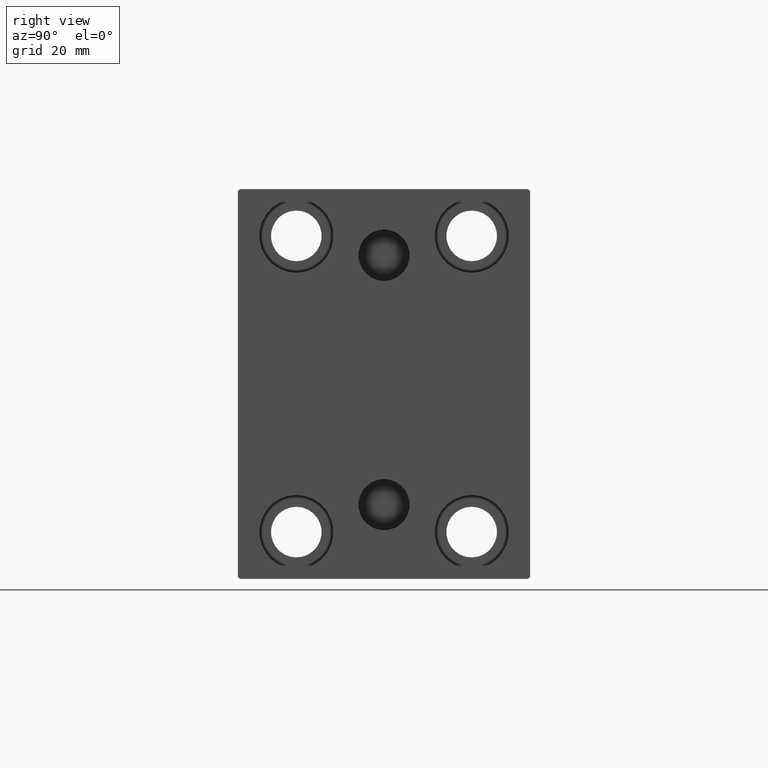
[diagram: clean part render]
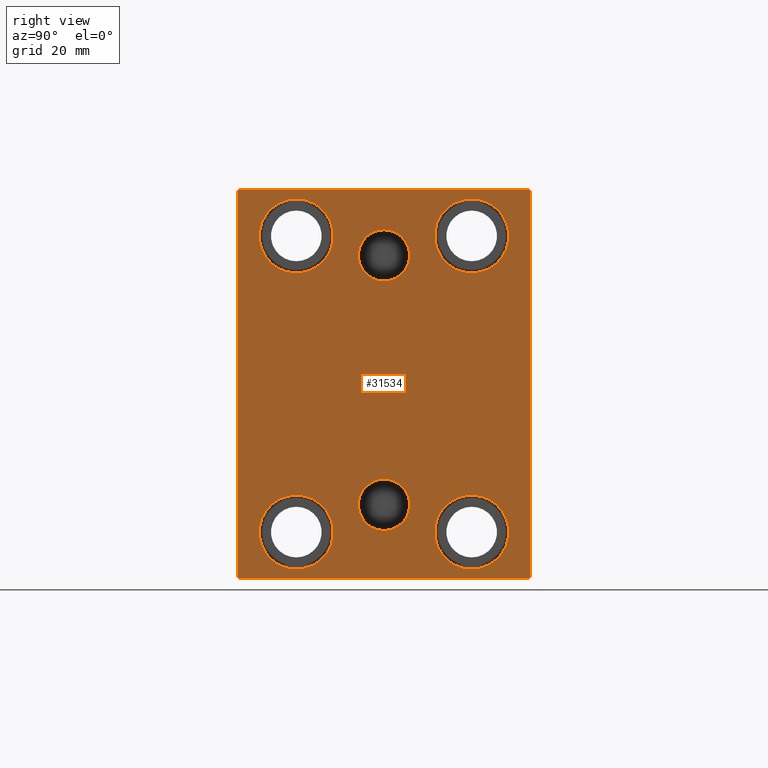
[diagram: same view with one face highlighted and labeled with its STEP entity id]
A machine part, right view. The second image highlights one B-rep face of the part: STEP entity #31534.
In plain terms, the highlighted planar face has unit normal (1, 0, 0).
Its self-contained STEP definition (entity closure, byte-faithful):
#221 = AXIS2_PLACEMENT_3D ( 'NONE', #29704, #9212, #25478 ) ;
#949 = CARTESIAN_POINT ( 'NONE',  ( 98.00000000000000000, -22.50000000000000711, -47.49999999999999289 ) ) ;
#1433 = CARTESIAN_POINT ( 'NONE',  ( 98.00000000000000000, -5.306417150674643778E-15, 33.00000000000000711 ) ) ;
#1539 = AXIS2_PLACEMENT_3D ( 'NONE', #19851, #16714, #5806 ) ;
#1795 = EDGE_CURVE ( 'NONE', #40604, #2858, #9403, .T. ) ;
#2061 = ORIENTED_EDGE ( 'NONE', *, *, #7458, .T. ) ;
#2461 = LINE ( 'NONE', #16273, #10761 ) ;
#2858 = VERTEX_POINT ( 'NONE', #25185 ) ;
#2872 = VERTEX_POINT ( 'NONE', #43705 ) ;
#2883 = EDGE_CURVE ( 'NONE', #4324, #2872, #26850, .T. ) ;
#3271 = CARTESIAN_POINT ( 'NONE',  ( 98.00000000000000000, 22.50000000000000355, 47.49999999999999289 ) ) ;
#3353 = VERTEX_POINT ( 'NONE', #949 ) ;
#3540 = ORIENTED_EDGE ( 'NONE', *, *, #21836, .T. ) ;
#3733 = AXIS2_PLACEMENT_3D ( 'NONE', #37548, #44016, #23698 ) ;
#4324 = VERTEX_POINT ( 'NONE', #19531 ) ;
#4457 = EDGE_LOOP ( 'NONE', ( #24861, #8201, #6650, #7003, #37424, #12332, #38083, #21859 ) ) ;
#4583 = VERTEX_POINT ( 'NONE', #16565 ) ;
#4586 = VECTOR ( 'NONE', #35728, 1000.000000000000000 ) ;
#4667 = LINE ( 'NONE', #18259, #26168 ) ;
#5006 = LINE ( 'NONE', #11698, #43155 ) ;
#5027 = AXIS2_PLACEMENT_3D ( 'NONE', #29333, #36047, #32680 ) ;
#5312 = ORIENTED_EDGE ( 'NONE', *, *, #2883, .T. ) ;
#5364 = DIRECTION ( 'NONE',  ( 1.000000000000000000, 0.000000000000000000, -0.000000000000000000 ) ) ;
#5806 = DIRECTION ( 'NONE',  ( 0.000000000000000000, 0.000000000000000000, 1.000000000000000000 ) ) ;
#5817 = AXIS2_PLACEMENT_3D ( 'NONE', #23406, #22524, #36142 ) ;
#6386 = CIRCLE ( 'NONE', #24893, 9.500000000000001776 ) ;
#6456 = DIRECTION ( 'NONE',  ( 0.000000000000000000, -0.7071067811865474617, -0.7071067811865474617 ) ) ;
#6536 = ORIENTED_EDGE ( 'NONE', *, *, #10000, .T. ) ;
#6650 = ORIENTED_EDGE ( 'NONE', *, *, #40523, .T. ) ;
#6662 = DIRECTION ( 'NONE',  ( 0.000000000000000000, 0.000000000000000000, 1.000000000000000000 ) ) ;
#6747 = VERTEX_POINT ( 'NONE', #12336 ) ;
#6927 = LINE ( 'NONE', #40836, #29473 ) ;
#7003 = ORIENTED_EDGE ( 'NONE', *, *, #1795, .T. ) ;
#7458 = EDGE_CURVE ( 'NONE', #2872, #4324, #6386, .T. ) ;
#7641 = AXIS2_PLACEMENT_3D ( 'NONE', #1433, #42478, #32413 ) ;
#8098 = ORIENTED_EDGE ( 'NONE', *, *, #41357, .F. ) ;
#8201 = ORIENTED_EDGE ( 'NONE', *, *, #11480, .T. ) ;
#8940 = FACE_BOUND ( 'NONE', #31191, .T. ) ;
#9212 = DIRECTION ( 'NONE',  ( -1.000000000000000000, -0.000000000000000000, -0.000000000000000000 ) ) ;
#9384 = CARTESIAN_POINT ( 'NONE',  ( 98.00000000000000000, 3.796405077356792748E-15, -30.99999999999999289 ) ) ;
#9403 = LINE ( 'NONE', #43524, #16853 ) ;
#9793 = CIRCLE ( 'NONE', #7641, 6.579999999999999183 ) ;
#9935 = EDGE_LOOP ( 'NONE', ( #6536, #3540 ) ) ;
#10000 = EDGE_CURVE ( 'NONE', #3353, #43823, #17122, .T. ) ;
#10246 = CARTESIAN_POINT ( 'NONE',  ( 98.00000000000000000, -37.50000000000000711, 49.99999999999999289 ) ) ;
#10324 = DIRECTION ( 'NONE',  ( 0.000000000000000000, 0.000000000000000000, 1.000000000000000000 ) ) ;
#10549 = DIRECTION ( 'NONE',  ( -1.000000000000000000, -0.000000000000000000, -0.000000000000000000 ) ) ;
#10761 = VECTOR ( 'NONE', #6456, 1000.000000000000114 ) ;
#10910 = EDGE_CURVE ( 'NONE', #38505, #6747, #24255, .T. ) ;
#11415 = DIRECTION ( 'NONE',  ( 0.000000000000000000, 0.000000000000000000, 1.000000000000000000 ) ) ;
#11480 = EDGE_CURVE ( 'NONE', #21706, #13345, #2461, .T. ) ;
#11494 = DIRECTION ( 'NONE',  ( 0.000000000000000000, 0.000000000000000000, 1.000000000000000000 ) ) ;
#11698 = CARTESIAN_POINT ( 'NONE',  ( 98.00000000000000000, 37.50000000000000711, -50.00000000000000000 ) ) ;
#12332 = ORIENTED_EDGE ( 'NONE', *, *, #24252, .T. ) ;
#12336 = CARTESIAN_POINT ( 'NONE',  ( 98.00000000000000000, 22.50000000000000355, 28.49999999999998934 ) ) ;
#12507 = CARTESIAN_POINT ( 'NONE',  ( 98.00000000000000000, -22.50000000000000711, -28.49999999999998934 ) ) ;
#12719 = FACE_BOUND ( 'NONE', #37607, .T. ) ;
#12818 = VERTEX_POINT ( 'NONE', #34653 ) ;
#13345 = VERTEX_POINT ( 'NONE', #39282 ) ;
#13494 = VERTEX_POINT ( 'NONE', #14026 ) ;
#13506 = VERTEX_POINT ( 'NONE', #23420 ) ;
#13642 = CIRCLE ( 'NONE', #5817, 6.579999999999999183 ) ;
#13655 = ORIENTED_EDGE ( 'NONE', *, *, #22541, .T. ) ;
#14026 = CARTESIAN_POINT ( 'NONE',  ( 98.00000000000000000, 37.49999999999999289, 49.50000000000000000 ) ) ;
#14470 = DIRECTION ( 'NONE',  ( -0.000000000000000000, 0.7071067811865474617, 0.7071067811865474617 ) ) ;
#14621 = DIRECTION ( 'NONE',  ( -1.000000000000000000, -0.000000000000000000, -0.000000000000000000 ) ) ;
#15132 = EDGE_CURVE ( 'NONE', #27270, #4583, #42899, .T. ) ;
#15257 = DIRECTION ( 'NONE',  ( 0.000000000000000000, -1.387778780781445676E-16, 1.000000000000000000 ) ) ;
#15383 = DIRECTION ( 'NONE',  ( 1.000000000000000000, 0.000000000000000000, 0.000000000000000000 ) ) ;
#15607 = FACE_BOUND ( 'NONE', #38468, .T. ) ;
#16273 = CARTESIAN_POINT ( 'NONE',  ( 98.00000000000000000, -43.49999999999998579, 43.49999999999998579 ) ) ;
#16517 = DIRECTION ( 'NONE',  ( -0.000000000000000000, 0.7071067811865474617, -0.7071067811865474617 ) ) ;
#16565 = CARTESIAN_POINT ( 'NONE',  ( 98.00000000000000000, -22.49999999999999645, 47.49999999999999289 ) ) ;
#16684 = CIRCLE ( 'NONE', #41625, 9.500000000000001776 ) ;
#16714 = DIRECTION ( 'NONE',  ( 1.000000000000000000, 0.000000000000000000, -0.000000000000000000 ) ) ;
#16853 = VECTOR ( 'NONE', #16517, 1000.000000000000114 ) ;
#17122 = CIRCLE ( 'NONE', #40649, 9.500000000000001776 ) ;
#17316 = CARTESIAN_POINT ( 'NONE',  ( 98.00000000000000000, -22.50000000000000711, -37.99999999999999289 ) ) ;
#18228 = CARTESIAN_POINT ( 'NONE',  ( 98.00000000000000000, -37.50000000000000711, -49.49999999999999289 ) ) ;
#18259 = CARTESIAN_POINT ( 'NONE',  ( 98.00000000000000000, -37.50000000000000711, -50.00000000000000711 ) ) ;
#19180 = PLANE ( 'NONE',  #21814 ) ;
#19531 = CARTESIAN_POINT ( 'NONE',  ( 98.00000000000000000, 22.49999999999999645, -47.49999999999999289 ) ) ;
#19714 = ORIENTED_EDGE ( 'NONE', *, *, #24813, .T. ) ;
#19851 = CARTESIAN_POINT ( 'NONE',  ( 98.00000000000000000, 3.796405077356792748E-15, -30.99999999999999289 ) ) ;
#20395 = EDGE_CURVE ( 'NONE', #13494, #32348, #37404, .T. ) ;
#20966 = DIRECTION ( 'NONE',  ( 0.000000000000000000, 1.000000000000000000, 9.251858538542970348E-17 ) ) ;
#21466 = CARTESIAN_POINT ( 'NONE',  ( 98.00000000000000000, 3.796405077356792748E-15, -37.57999999999999829 ) ) ;
#21706 = VERTEX_POINT ( 'NONE', #26852 ) ;
#21814 = AXIS2_PLACEMENT_3D ( 'NONE', #22070, #15383, #26317 ) ;
#21836 = EDGE_CURVE ( 'NONE', #43823, #3353, #40140, .T. ) ;
#21859 = ORIENTED_EDGE ( 'NONE', *, *, #20395, .T. ) ;
#22070 = CARTESIAN_POINT ( 'NONE',  ( 98.00000000000000000, 0.000000000000000000, 0.000000000000000000 ) ) ;
#22175 = ORIENTED_EDGE ( 'NONE', *, *, #31535, .F. ) ;
#22459 = VERTEX_POINT ( 'NONE', #23371 ) ;
#22524 = DIRECTION ( 'NONE',  ( 1.000000000000000000, 0.000000000000000000, 0.000000000000000000 ) ) ;
#22541 = EDGE_CURVE ( 'NONE', #6747, #38505, #30173, .T. ) ;
#23371 = CARTESIAN_POINT ( 'NONE',  ( 98.00000000000000000, 37.50000000000000711, -49.50000000000000000 ) ) ;
#23406 = CARTESIAN_POINT ( 'NONE',  ( 98.00000000000000000, -5.306417150674643778E-15, 33.00000000000000711 ) ) ;
#23420 = CARTESIAN_POINT ( 'NONE',  ( 98.00000000000000000, -4.500599556835685525E-15, 39.58000000000000540 ) ) ;
#23698 = DIRECTION ( 'NONE',  ( 0.000000000000000000, 0.000000000000000000, 1.000000000000000000 ) ) ;
#23821 = CARTESIAN_POINT ( 'NONE',  ( 98.00000000000000000, 22.49999999999999645, -37.99999999999999289 ) ) ;
#24252 = EDGE_CURVE ( 'NONE', #12818, #22459, #6927, .T. ) ;
#24255 = CIRCLE ( 'NONE', #5027, 9.500000000000001776 ) ;
#24496 = LINE ( 'NONE', #10246, #42135 ) ;
#24686 = AXIS2_PLACEMENT_3D ( 'NONE', #9384, #5364, #35694 ) ;
#24813 = EDGE_CURVE ( 'NONE', #4583, #27270, #16684, .T. ) ;
#24861 = ORIENTED_EDGE ( 'NONE', *, *, #26067, .T. ) ;
#24893 = AXIS2_PLACEMENT_3D ( 'NONE', #27258, #27470, #10324 ) ;
#25185 = CARTESIAN_POINT ( 'NONE',  ( 98.00000000000000000, -36.99999999999999289, -50.00000000000000711 ) ) ;
#25408 = AXIS2_PLACEMENT_3D ( 'NONE', #23821, #30070, #6662 ) ;
#25429 = FACE_OUTER_BOUND ( 'NONE', #4457, .T. ) ;
#25462 = LINE ( 'NONE', #39083, #4586 ) ;
#25478 = DIRECTION ( 'NONE',  ( 0.000000000000000000, 0.000000000000000000, 1.000000000000000000 ) ) ;
#25878 = FACE_BOUND ( 'NONE', #31073, .T. ) ;
#25970 = VERTEX_POINT ( 'NONE', #35282 ) ;
#26067 = EDGE_CURVE ( 'NONE', #32348, #21706, #25462, .T. ) ;
#26168 = VECTOR ( 'NONE', #20966, 1000.000000000000000 ) ;
#26317 = DIRECTION ( 'NONE',  ( 0.000000000000000000, 0.000000000000000000, -1.000000000000000000 ) ) ;
#26545 = CARTESIAN_POINT ( 'NONE',  ( 98.00000000000000000, 36.99999999999999289, 50.00000000000000711 ) ) ;
#26850 = CIRCLE ( 'NONE', #25408, 9.500000000000001776 ) ;
#26852 = CARTESIAN_POINT ( 'NONE',  ( 98.00000000000000000, -36.99999999999999289, 49.99999999999999289 ) ) ;
#27015 = EDGE_LOOP ( 'NONE', ( #32516, #19714 ) ) ;
#27258 = CARTESIAN_POINT ( 'NONE',  ( 98.00000000000000000, 22.49999999999999645, -37.99999999999999289 ) ) ;
#27270 = VERTEX_POINT ( 'NONE', #32036 ) ;
#27333 = CARTESIAN_POINT ( 'NONE',  ( 98.00000000000000000, 43.50000000000026290, 43.49999999999965894 ) ) ;
#27470 = DIRECTION ( 'NONE',  ( -1.000000000000000000, -0.000000000000000000, -0.000000000000000000 ) ) ;
#28013 = CARTESIAN_POINT ( 'NONE',  ( 98.00000000000000000, 22.50000000000000355, 37.99999999999999289 ) ) ;
#29333 = CARTESIAN_POINT ( 'NONE',  ( 98.00000000000000000, 22.50000000000000355, 37.99999999999999289 ) ) ;
#29404 = EDGE_CURVE ( 'NONE', #22459, #13494, #5006, .T. ) ;
#29473 = VECTOR ( 'NONE', #14470, 1000.000000000000114 ) ;
#29507 = VECTOR ( 'NONE', #36966, 999.9999999999998863 ) ;
#29520 = ORIENTED_EDGE ( 'NONE', *, *, #33576, .F. ) ;
#29704 = CARTESIAN_POINT ( 'NONE',  ( 98.00000000000000000, -22.50000000000000711, -37.99999999999999289 ) ) ;
#30070 = DIRECTION ( 'NONE',  ( -1.000000000000000000, -0.000000000000000000, -0.000000000000000000 ) ) ;
#30173 = CIRCLE ( 'NONE', #32290, 9.500000000000001776 ) ;
#30591 = VERTEX_POINT ( 'NONE', #35294 ) ;
#31073 = EDGE_LOOP ( 'NONE', ( #5312, #2061 ) ) ;
#31191 = EDGE_LOOP ( 'NONE', ( #13655, #36082 ) ) ;
#31534 = ADVANCED_FACE ( 'NONE', ( #15607, #12719, #25878, #39942, #8940, #43288, #25429 ), #19180, .T. ) ;
#31535 = EDGE_CURVE ( 'NONE', #25970, #39856, #43947, .T. ) ;
#32036 = CARTESIAN_POINT ( 'NONE',  ( 98.00000000000000000, -22.49999999999999645, 28.49999999999998934 ) ) ;
#32290 = AXIS2_PLACEMENT_3D ( 'NONE', #28013, #14621, #41209 ) ;
#32348 = VERTEX_POINT ( 'NONE', #26545 ) ;
#32413 = DIRECTION ( 'NONE',  ( 0.000000000000000000, 0.000000000000000000, -1.000000000000000000 ) ) ;
#32516 = ORIENTED_EDGE ( 'NONE', *, *, #15132, .T. ) ;
#32680 = DIRECTION ( 'NONE',  ( 0.000000000000000000, 0.000000000000000000, 1.000000000000000000 ) ) ;
#32862 = CIRCLE ( 'NONE', #1539, 6.580000000000002736 ) ;
#33576 = EDGE_CURVE ( 'NONE', #13506, #30591, #9793, .T. ) ;
#33613 = ORIENTED_EDGE ( 'NONE', *, *, #40316, .F. ) ;
#33777 = EDGE_CURVE ( 'NONE', #2858, #12818, #4667, .T. ) ;
#34622 = CARTESIAN_POINT ( 'NONE',  ( 98.00000000000000000, -22.49999999999999645, 37.99999999999999289 ) ) ;
#34653 = CARTESIAN_POINT ( 'NONE',  ( 98.00000000000000000, 37.00000000000000711, -50.00000000000000000 ) ) ;
#35282 = CARTESIAN_POINT ( 'NONE',  ( 98.00000000000000000, 4.602222671195751790E-15, -24.41999999999999105 ) ) ;
#35294 = CARTESIAN_POINT ( 'NONE',  ( 98.00000000000000000, -5.306417150674643778E-15, 26.42000000000000881 ) ) ;
#35694 = DIRECTION ( 'NONE',  ( 0.000000000000000000, 0.000000000000000000, 1.000000000000000000 ) ) ;
#35728 = DIRECTION ( 'NONE',  ( 0.000000000000000000, -1.000000000000000000, -1.850371707708594316E-16 ) ) ;
#36047 = DIRECTION ( 'NONE',  ( -1.000000000000000000, -0.000000000000000000, -0.000000000000000000 ) ) ;
#36082 = ORIENTED_EDGE ( 'NONE', *, *, #10910, .T. ) ;
#36142 = DIRECTION ( 'NONE',  ( 0.000000000000000000, 0.000000000000000000, -1.000000000000000000 ) ) ;
#36966 = DIRECTION ( 'NONE',  ( -0.000000000000000000, -0.7071067811865425767, 0.7071067811865525687 ) ) ;
#37404 = LINE ( 'NONE', #27333, #29507 ) ;
#37424 = ORIENTED_EDGE ( 'NONE', *, *, #33777, .T. ) ;
#37467 = DIRECTION ( 'NONE',  ( 0.000000000000000000, 0.000000000000000000, -1.000000000000000000 ) ) ;
#37548 = CARTESIAN_POINT ( 'NONE',  ( 98.00000000000000000, -22.49999999999999645, 37.99999999999999289 ) ) ;
#37607 = EDGE_LOOP ( 'NONE', ( #8098, #22175 ) ) ;
#38083 = ORIENTED_EDGE ( 'NONE', *, *, #29404, .T. ) ;
#38288 = DIRECTION ( 'NONE',  ( -1.000000000000000000, -0.000000000000000000, -0.000000000000000000 ) ) ;
#38468 = EDGE_LOOP ( 'NONE', ( #33613, #29520 ) ) ;
#38505 = VERTEX_POINT ( 'NONE', #3271 ) ;
#39083 = CARTESIAN_POINT ( 'NONE',  ( 98.00000000000000000, 37.49999999999999289, 50.00000000000000711 ) ) ;
#39282 = CARTESIAN_POINT ( 'NONE',  ( 98.00000000000000000, -37.50000000000000711, 49.49999999999997868 ) ) ;
#39856 = VERTEX_POINT ( 'NONE', #21466 ) ;
#39942 = FACE_BOUND ( 'NONE', #27015, .T. ) ;
#40140 = CIRCLE ( 'NONE', #221, 9.500000000000001776 ) ;
#40316 = EDGE_CURVE ( 'NONE', #30591, #13506, #13642, .T. ) ;
#40523 = EDGE_CURVE ( 'NONE', #13345, #40604, #24496, .T. ) ;
#40604 = VERTEX_POINT ( 'NONE', #18228 ) ;
#40649 = AXIS2_PLACEMENT_3D ( 'NONE', #17316, #38288, #11494 ) ;
#40836 = CARTESIAN_POINT ( 'NONE',  ( 98.00000000000000000, 43.50000000000000711, -43.50000000000000711 ) ) ;
#41209 = DIRECTION ( 'NONE',  ( 0.000000000000000000, 0.000000000000000000, 1.000000000000000000 ) ) ;
#41357 = EDGE_CURVE ( 'NONE', #39856, #25970, #32862, .T. ) ;
#41625 = AXIS2_PLACEMENT_3D ( 'NONE', #34622, #10549, #11415 ) ;
#42135 = VECTOR ( 'NONE', #37467, 1000.000000000000000 ) ;
#42478 = DIRECTION ( 'NONE',  ( 1.000000000000000000, 0.000000000000000000, 0.000000000000000000 ) ) ;
#42899 = CIRCLE ( 'NONE', #3733, 9.500000000000001776 ) ;
#43155 = VECTOR ( 'NONE', #15257, 1000.000000000000000 ) ;
#43288 = FACE_BOUND ( 'NONE', #9935, .T. ) ;
#43524 = CARTESIAN_POINT ( 'NONE',  ( 98.00000000000000000, -43.50000000000000000, -43.50000000000000000 ) ) ;
#43705 = CARTESIAN_POINT ( 'NONE',  ( 98.00000000000000000, 22.49999999999999645, -28.49999999999998934 ) ) ;
#43823 = VERTEX_POINT ( 'NONE', #12507 ) ;
#43947 = CIRCLE ( 'NONE', #24686, 6.580000000000002736 ) ;
#44016 = DIRECTION ( 'NONE',  ( -1.000000000000000000, -0.000000000000000000, -0.000000000000000000 ) ) ;